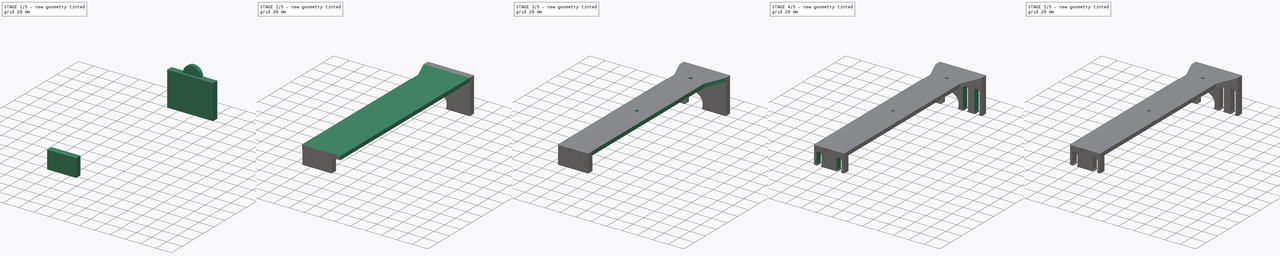
[diagram: build sequence overview — one tinted view per stage of 5, left to right]
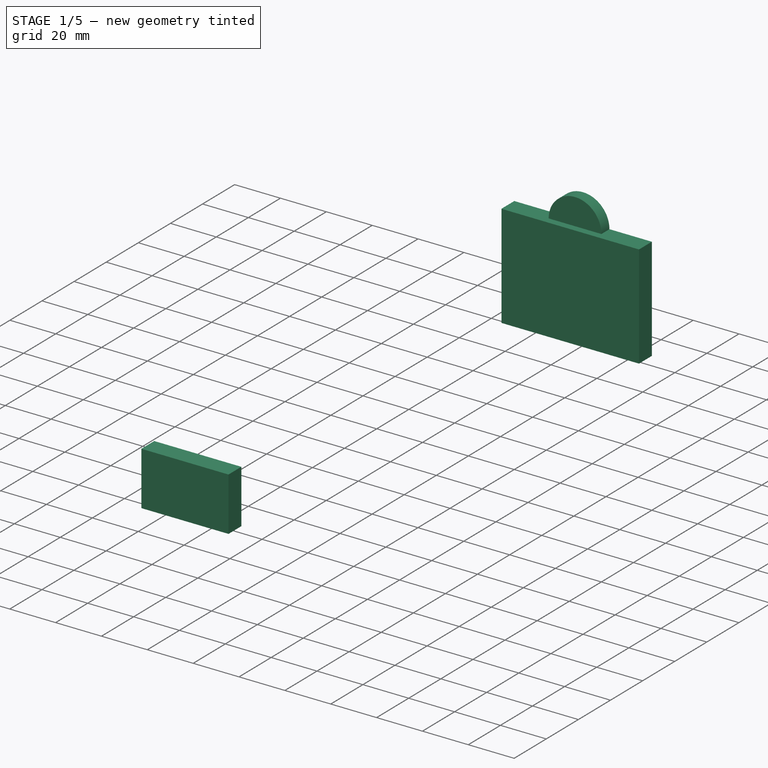
[diagram: stage 1 of 5 — iso view after this stage's code; geometry added in this stage tinted green]
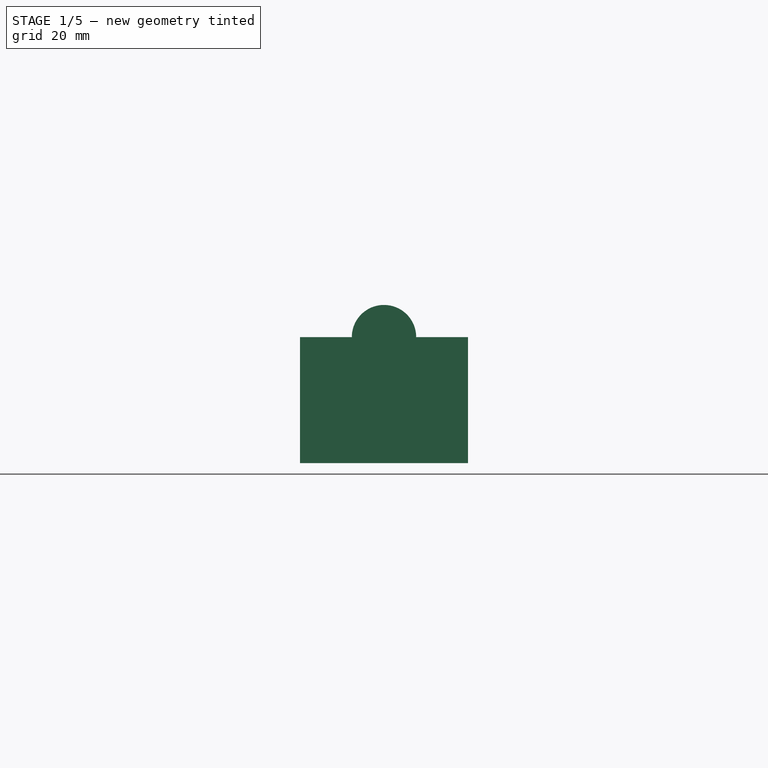
[diagram: stage 1 of 5 — front view after this stage's code; geometry added in this stage tinted green]
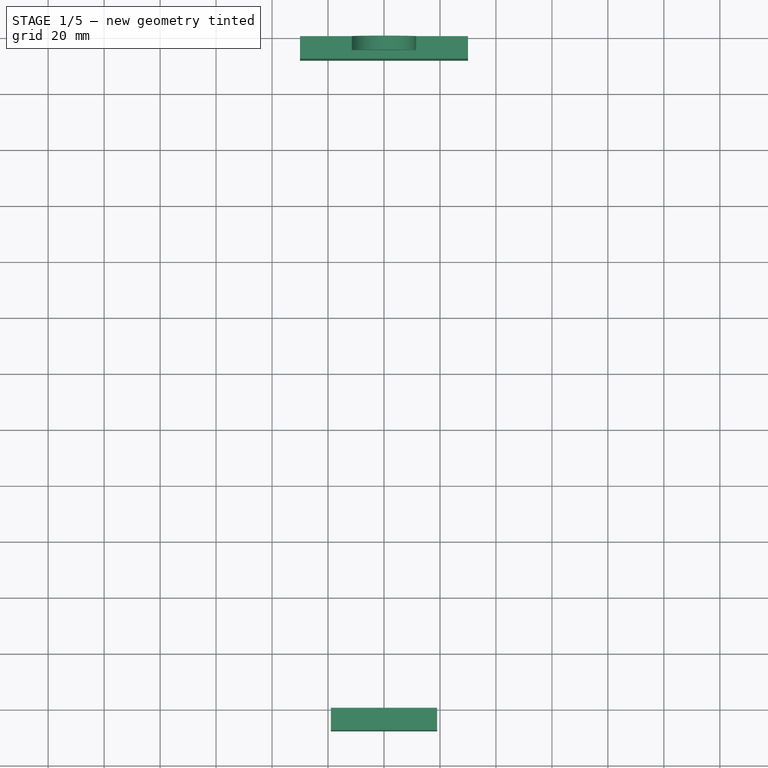
[diagram: stage 1 of 5 — top view after this stage's code; geometry added in this stage tinted green]
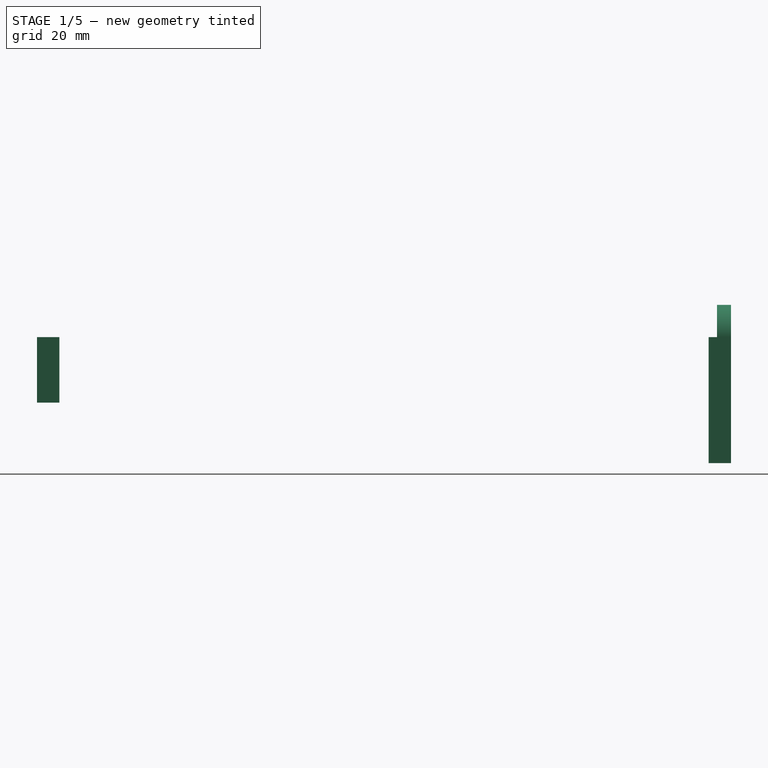
[diagram: stage 1 of 5 — right view after this stage's code; geometry added in this stage tinted green]
FCSTD DOCUMENT  (FreeCAD 0.18R4 (GitTag))
Label: soporte_dremel_principal
License: All rights reserved
LicenseURL: http://en.wikipedia.org/wiki/All_rights_reserved
objects: Sketcher::SketchObject×12, Part::Cut×7, PartDesign::Pad×5, Part::Box×5, Part::MultiFuse×4, Part::Extrusion×4, PartDesign::Body×3, Part::Chamfer×3, PartDesign::Pocket×2, PartDesign::Hole×1, PartDesign::Boolean×1, Part::Feature×1
note: 56 computed .brp shape members not serialized (recipe doc carries the construction recipe); baked Part::Feature solids carry a one-line shape summary decoded from their .brp

FEATURE [Sketcher::SketchObject] Sketch
  MapMode = 5
  Placement = pos=(0,0,0) rot=(1,0,0;1.5708rad)
  Support = -> [XZ_Plane]
  sketch-geometry (15):
    g0: LineSegment StartX=-30 StartY=0 StartZ=0 EndX=30 EndY=0 EndZ=0
    g1: LineSegment StartX=30 StartY=0 StartZ=0 EndX=30 EndY=-23.3842 EndZ=0
    g2: LineSegment StartX=30 StartY=-23.3842 StartZ=0 EndX=20.25 EndY=-23.3842 EndZ=0
    g3: LineSegment StartX=-30 StartY=-23.3842 StartZ=0 EndX=-30 EndY=0 EndZ=0
    g4: LineSegment [constr] StartX=-14 StartY=12 StartZ=0 EndX=-14 EndY=-48 EndZ=0
    g5: LineSegment [constr] StartX=14 StartY=12 StartZ=0 EndX=14 EndY=-48 EndZ=0
    g6: ArcOfCircle CenterX=-14 CenterY=-18 CenterZ=0 NormalX=0 NormalY=0 NormalZ=1 AngleXU=0 Radius=7.5 StartAngle=5.6975 EndAngle=10.0105
    g7: ArcOfCircle CenterX=14 CenterY=-18 CenterZ=0 NormalX=0 NormalY=0 NormalZ=1 AngleXU=0 Radius=7.5 StartAngle=5.6975 EndAngle=10.0105
    g8: Circle [constr] CenterX=-14 CenterY=-18 CenterZ=0 NormalX=0 NormalY=0 NormalZ=1 AngleXU=0 Radius=11
    g9: LineSegment StartX=-20.25 StartY=-22.1458 StartZ=0 EndX=-20.25 EndY=-23.3842 EndZ=0
    g10: LineSegment StartX=-7.75 StartY=-22.1458 StartZ=0 EndX=-7.75 EndY=-23.3842 EndZ=0
    g11: LineSegment StartX=7.75 StartY=-22.1458 StartZ=0 EndX=7.75 EndY=-23.3842 EndZ=0
    g12: LineSegment StartX=20.25 StartY=-22.1458 StartZ=0 EndX=20.25 EndY=-23.3842 EndZ=0
    g13: LineSegment StartX=-20.25 StartY=-23.3842 StartZ=0 EndX=-30 EndY=-23.3842 EndZ=0
    g14: LineSegment StartX=7.75 StartY=-23.3842 StartZ=0 EndX=-7.75 EndY=-23.3842 EndZ=0
  constraints (40):
    c: Coincident(g0,g1)
    c: Coincident(g1,g2)
    c: Coincident(g13,g3)
    c: Coincident(g3,g0)
    c: Horizontal(g0)
    c: Horizontal(g2)
    c: Vertical(g1)
    c: Vertical(g3)
    c: Symmetric(g0,g0,g-1)
    c: DistanceX(g0,g0) = 60
    c: Vertical(g4)
    c: Vertical(g5)
    c: Symmetric(g4,g5,g-2)
    c: DistanceX(g4,g5) = 28
    c: Equal(g4,g5)
    c: DistanceY(g5,g5) = 60
    c: DistanceY(g-1,g5) = 12
    c: Diameter(g6) = 15
    c: Equal(g6,g7)
    c: Coincident(g8,g6)
    c: Diameter(g8) = 22
    c: DistanceY(g7,g6) = 0
    c: Vertical(g9)
    c: Vertical(g10)
    c: Vertical(g11)
    c: Vertical(g12)
    c: Coincident(g9,g6)
    c: Coincident(g10,g6)
    c: Coincident(g13,g9)
    c: Tangent(g2,g13)
    c: Coincident(g10,g14)
    c: Coincident(g14,g11)
    c: Tangent(g2,g14)
    c: Coincident(g11,g7)
    c: Coincident(g7,g12)
    c: Coincident(g12,g2)
    c: Symmetric(g6,g6,g4)
    c: DistanceX(g6,g6) = 12.5
    c: Symmetric(g7,g7,g5)
    c: DistanceX(g7,g7) = 12.5
FEATURE [PartDesign::Pad] Pad
  Length = 8
  Length2 = 100
  Placement = pos=(0,0,0) rot=(1,0,0;1.5708rad)
  Profile = -> Sketch
  Type = 0
FEATURE [PartDesign::Body] Body
  Group = -> [Sketch,Pad,Sketch001,Pad001,Sketch002,Pocket,Sketch003,Pocket001,Sketch004,Pad002,Sketch005,Hole]
  Origin = -> Origin
  Tip = -> Hole
FEATURE [Part::Box] Box  label="Cube"
  AttacherType = Attacher::AttachEngine3D
  Height = 45
  Length = 60
  Placement = pos=(-30,-8,-45) rot=(0,0,1;0rad)
  Width = 8
FEATURE [PartDesign::Body] Body001
  Group = -> [Sketch006,Pad003]
  Origin = -> Origin001
  Placement = pos=(0,3,0) rot=(0,0,1;0rad)
  Tip = -> Pad003
FEATURE [Sketcher::SketchObject] Sketch007
  MapMode = 5
  Placement = pos=(0,0,0) rot=(1,0,0;1.5708rad)
  Support = -> [XZ_Plane002]
  sketch-geometry (4):
    g0: ArcOfCircle CenterX=0 CenterY=0 CenterZ=0 NormalX=0 NormalY=0 NormalZ=1 AngleXU=0 Radius=11.5 StartAngle=5.86307 EndAngle=9.84489
    g1: LineSegment StartX=-10.5 StartY=-4.69042 StartZ=0 EndX=-10.5 EndY=-9.69042 EndZ=0
    g2: LineSegment StartX=-10.5 StartY=-9.69042 StartZ=0 EndX=10.5 EndY=-9.69042 EndZ=0
    g3: LineSegment StartX=10.5 StartY=-9.69042 StartZ=0 EndX=10.5 EndY=-4.69042 EndZ=0
  constraints (12):
    c: Coincident(g0,g-1)
    c: Diameter(g0) = 23
    c: Vertical(g1)
    c: Coincident(g1,g2)
    c: Coincident(g2,g3)
    c: Vertical(g3)
    c: Equal(g1,g3)
    c: DistanceY(g3,g3) = 5
    c: DistanceX(g2,g2) = 21
    c: Symmetric(g1,g2,g-2)
    c: PointOnObject(g0,g3)
    c: Coincident(g0,g1)
FEATURE [PartDesign::Pad] Pad004
  Length = 5
  Length2 = 100
  Placement = pos=(0,0,0) rot=(1,0,0;1.5708rad)
  Profile = -> Sketch007
  Type = 0
FEATURE [PartDesign::Body] Body002
  Group = -> [Sketch007,Pad004,Boolean]
  Origin = -> Origin002
  Placement = pos=(-12,-5,-39) rot=(0,0,1;3.14159rad)
  Tip = -> Boolean
FEATURE [Part::MultiFuse] Fusion
  Shapes = -> [Box,Pad]
FEATURE [Part::Box] Box003  label="Cube003"
  AttacherType = Attacher::AttachEngine3D
  Height = 23
  Length = 38
  Placement = pos=(-19,-248,-23) rot=(0,0,1;0rad)
  Width = 8
FEATURE [Part::Box] Box004  label="Cube004"
  AttacherType = Attacher::AttachEngine3D
  Height = 23
  Length = 38
  Placement = pos=(-19,-248,-23.4) rot=(0,0,1;0rad)
  Width = 8
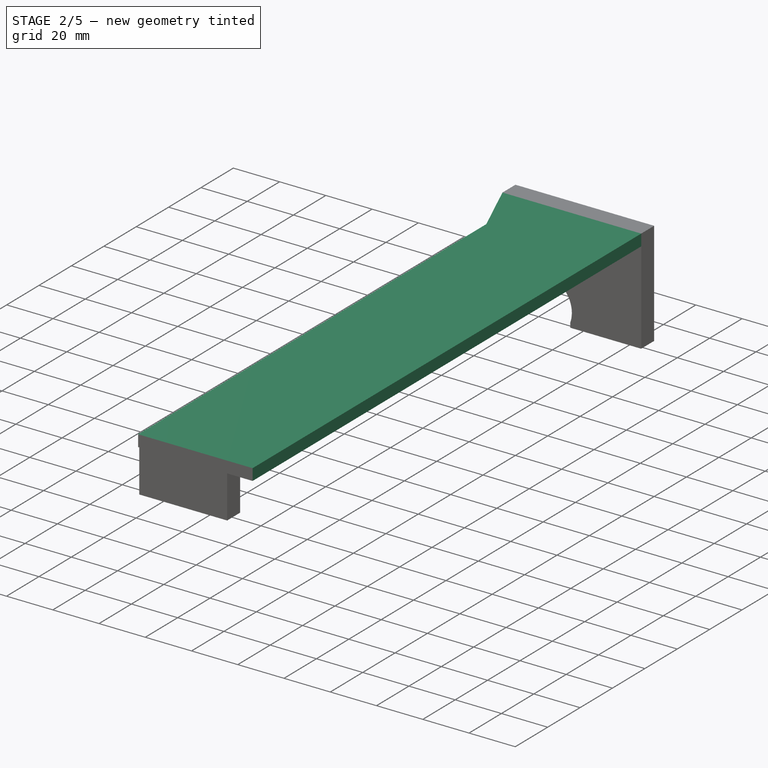
[diagram: stage 2 of 5 — iso view after this stage's code; geometry added in this stage tinted green]
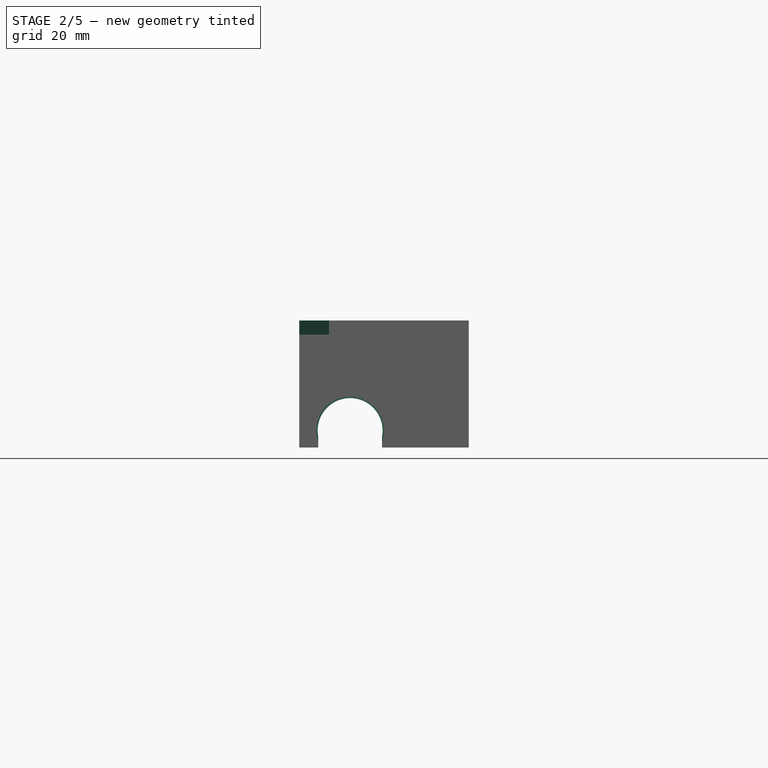
[diagram: stage 2 of 5 — front view after this stage's code; geometry added in this stage tinted green]
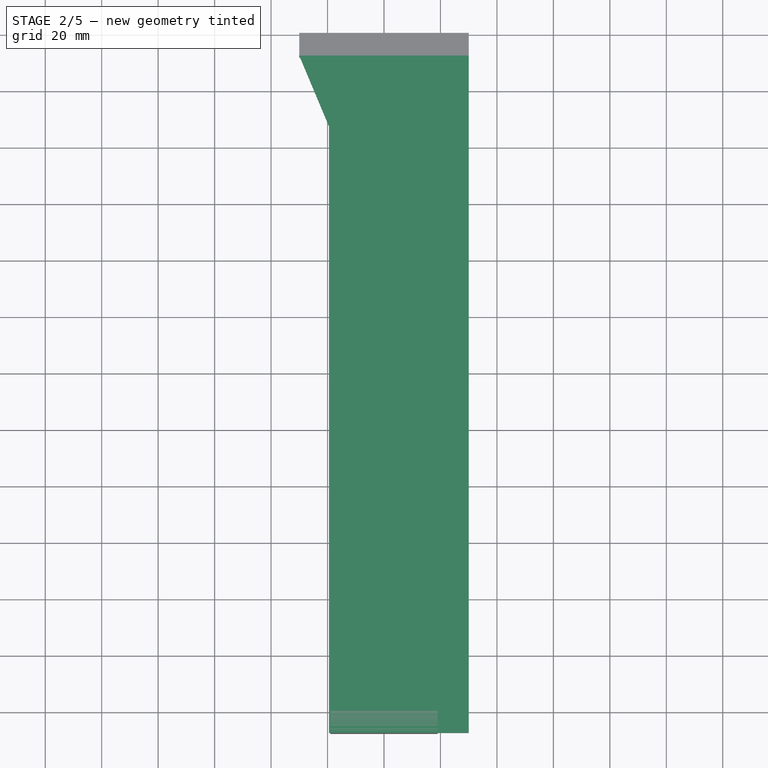
[diagram: stage 2 of 5 — top view after this stage's code; geometry added in this stage tinted green]
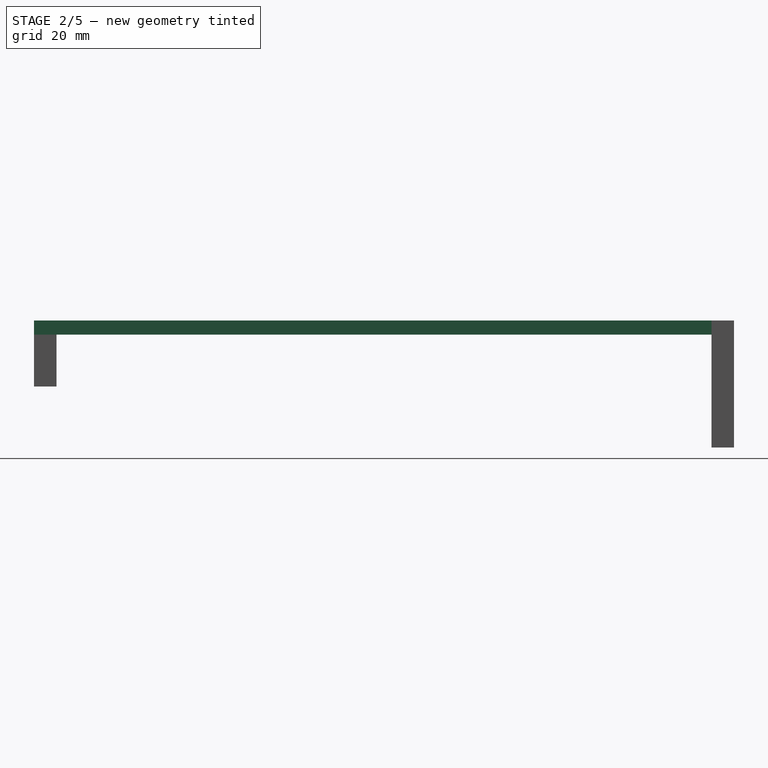
[diagram: stage 2 of 5 — right view after this stage's code; geometry added in this stage tinted green]
FEATURE [Sketcher::SketchObject] Sketch001
  ExternalGeometry = -> [Pad]
  MapMode = 5
  Placement = pos=(0,-8,-1.8e-15) rot=(1,0,0;1.5708rad)
  Support = -> [Pad]
  sketch-geometry (4):
    g0: LineSegment StartX=-30 StartY=0 StartZ=0 EndX=30 EndY=0 EndZ=0
    g1: LineSegment StartX=30 StartY=0 StartZ=0 EndX=30 EndY=-5 EndZ=0
    g2: LineSegment StartX=30 StartY=-5 StartZ=0 EndX=-30 EndY=-5 EndZ=0
    g3: LineSegment StartX=-30 StartY=-5 StartZ=0 EndX=-30 EndY=0 EndZ=0
  constraints (10):
    c: Coincident(g0,g1)
    c: Coincident(g1,g2)
    c: Coincident(g2,g3)
    c: Coincident(g3,g0)
    c: Horizontal(g2)
    c: Vertical(g1)
    c: Vertical(g3)
    c: Coincident(g0,g-5)
    c: Coincident(g0,g-5)
    c: DistanceY(g3,g3) = 5
FEATURE [PartDesign::Pad] Pad001
  BaseFeature = -> Pad
  Length = 240
  Length2 = 100
  Placement = pos=(0,0,0) rot=(1,0,0;1.5708rad)
  Profile = -> Sketch001
  Type = 0
FEATURE [Sketcher::SketchObject] Sketch002
  ExternalGeometry = -> [Pad001]
  MapMode = 5
  Placement = pos=(0,1.1e-15,-5) rot=(1,0,0;3.14159rad)
  Support = -> [Pad001]
  sketch-geometry (4):
    g0: LineSegment StartX=-19.5 StartY=251 StartZ=0 EndX=-33 EndY=251 EndZ=0
    g1: LineSegment StartX=-33 StartY=251 StartZ=0 EndX=-33 EndY=0.857143 EndZ=0
    g2: LineSegment StartX=-33 StartY=0.857143 StartZ=0 EndX=-19.5 EndY=33 EndZ=0
    g3: LineSegment StartX=-19.5 StartY=33 StartZ=0 EndX=-19.5 EndY=251 EndZ=0
  constraints (12):
    c: Horizontal(g0)
    c: Coincident(g0,g1)
    c: Vertical(g1)
    c: Coincident(g1,g2)
    c: Coincident(g2,g3)
    c: Vertical(g3)
    c: Coincident(g0,g3)
    c: DistanceX(g0,g-1) = 19.5
    c: PointOnObject(g-3,g2)
    c: DistanceY(g-3,g2) = 25
    c: DistanceY(g-4,g0) = 3
    c: DistanceX(g0,g-4) = 3
FEATURE [PartDesign::Pocket] Pocket
  BaseFeature = -> Pad001
  Length = 5
  Length2 = 100
  Placement = pos=(0,0,0) rot=(1,0,0;1.5708rad)
  Profile = -> Sketch002
  Type = 1
FEATURE [Sketcher::SketchObject] Sketch006
  MapMode = 5
  Placement = pos=(0,0,0) rot=(1,0,0;1.5708rad)
  Support = -> [XZ_Plane001]
  sketch-geometry (4):
    g0: ArcOfCircle CenterX=0 CenterY=0 CenterZ=0 NormalX=0 NormalY=0 NormalZ=1 AngleXU=0 Radius=12 StartAngle=5.77782 EndAngle=9.93014
    g1: LineSegment StartX=-10.5 StartY=-5.80948 StartZ=0 EndX=-10.5 EndY=-10.8095 EndZ=0
    g2: LineSegment StartX=-10.5 StartY=-10.8095 StartZ=0 EndX=10.5 EndY=-10.8095 EndZ=0
    g3: LineSegment StartX=10.5 StartY=-10.8095 StartZ=0 EndX=10.5 EndY=-5.80948 EndZ=0
  constraints (12):
    c: Coincident(g0,g-1)
    c: Diameter(g0) = 24
    c: Vertical(g1)
    c: Coincident(g1,g2)
    c: Coincident(g2,g3)
    c: Vertical(g3)
    c: Equal(g1,g3)
    c: DistanceX(g2,g2) = 21
    c: Symmetric(g1,g2,g-2)
    c: PointOnObject(g0,g3)
    c: DistanceY(g1,g1) = 5
    c: Coincident(g1,g0)
FEATURE [PartDesign::Pad] Pad003
  Length = 3
  Length2 = 100
  Placement = pos=(0,0,0) rot=(1,0,0;1.5708rad)
  Profile = -> Sketch006
  Type = 0
FEATURE [PartDesign::Boolean] Boolean
  BaseFeature = -> Pad004
  Group = -> [Body001]
  Type = 0
FEATURE [Part::Cut] Cut  label="parte_superior"
  Base = -> Fusion
  Tool = -> Body002
FEATURE [Sketcher::SketchObject] Sketch009
  ExternalGeometry = -> [Cut]
  MapMode = 5
  Placement = pos=(0,0,0) rot=(0,0.707107,0.707107;3.14159rad)
  Support = -> [Cut]
  sketch-geometry (4):
    g0: LineSegment StartX=0.7 StartY=-39 StartZ=0 EndX=23.3 EndY=-39 EndZ=0
    g1: LineSegment StartX=23.3 StartY=-39 StartZ=0 EndX=23.3 EndY=-53 EndZ=0
    g2: LineSegment StartX=23.3 StartY=-53 StartZ=0 EndX=0.7 EndY=-53 EndZ=0
    g3: LineSegment StartX=0.7 StartY=-53 StartZ=0 EndX=0.7 EndY=-39 EndZ=0
  constraints (11):
    c: Coincident(g0,g1)
    c: Coincident(g1,g2)
    c: Coincident(g2,g3)
    c: Coincident(g3,g0)
    c: Horizontal(g0)
    c: Horizontal(g2)
    c: Vertical(g1)
    c: Vertical(g3)
    c: Symmetric(g0,g0,g-3)
    c: DistanceX(g2,g2) = 22.6
    c: DistanceY(g1,g1) = 14
FEATURE [Part::Extrusion] Extrude002
  Base = -> Sketch009
  Dir = (0,1,-2e-16)
  DirMode = 2
  FaceMakerClass = Part::FaceMakerBullseye
  LengthFwd = -30
  LengthRev = 0
  Solid = true
  Symmetric = false
FEATURE [Part::Cut] Cut006  label="techo_superior"
  Base = -> Cut
  Tool = -> Extrude002
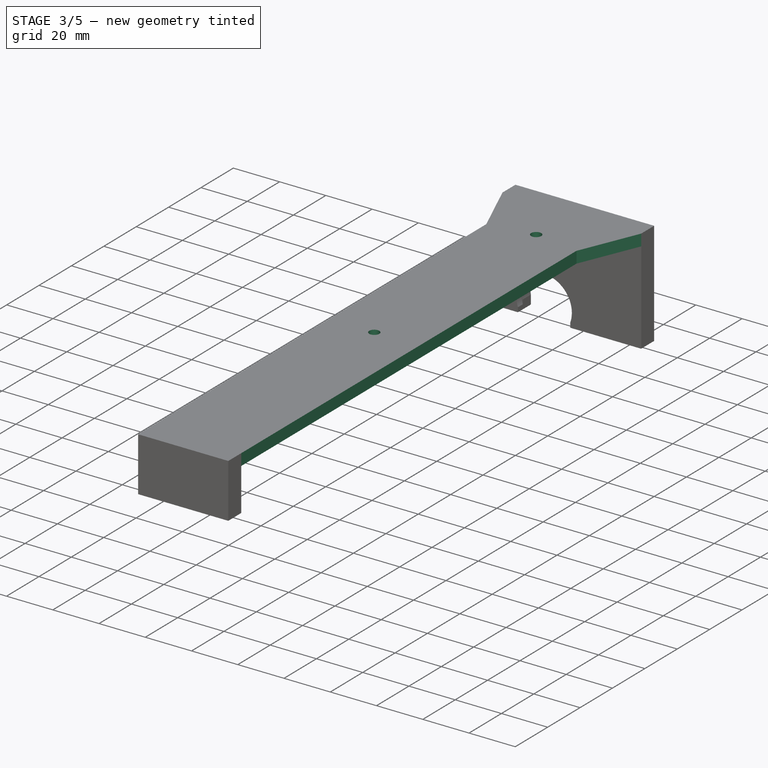
[diagram: stage 3 of 5 — iso view after this stage's code; geometry added in this stage tinted green]
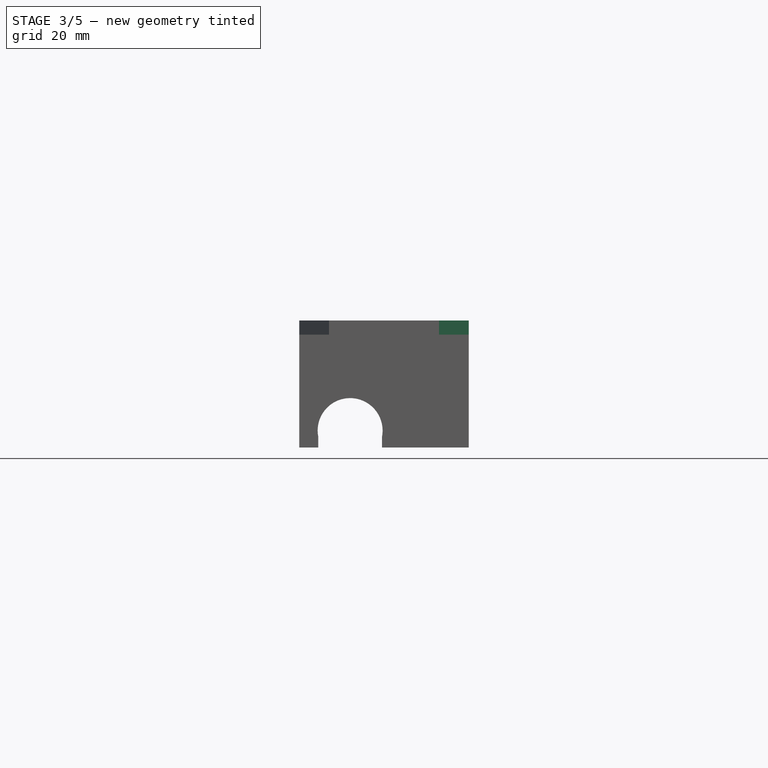
[diagram: stage 3 of 5 — front view after this stage's code; geometry added in this stage tinted green]
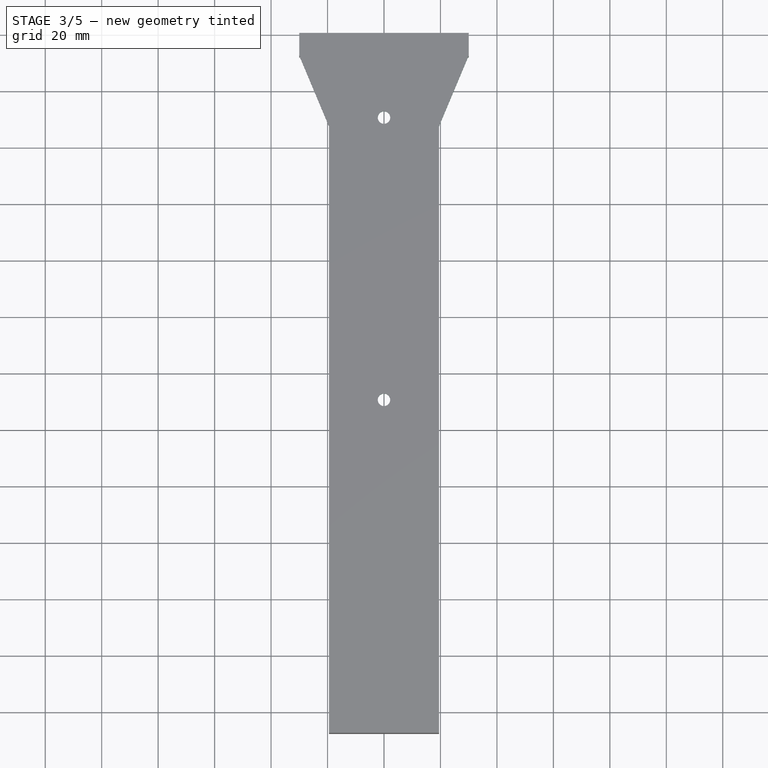
[diagram: stage 3 of 5 — top view after this stage's code; geometry added in this stage tinted green]
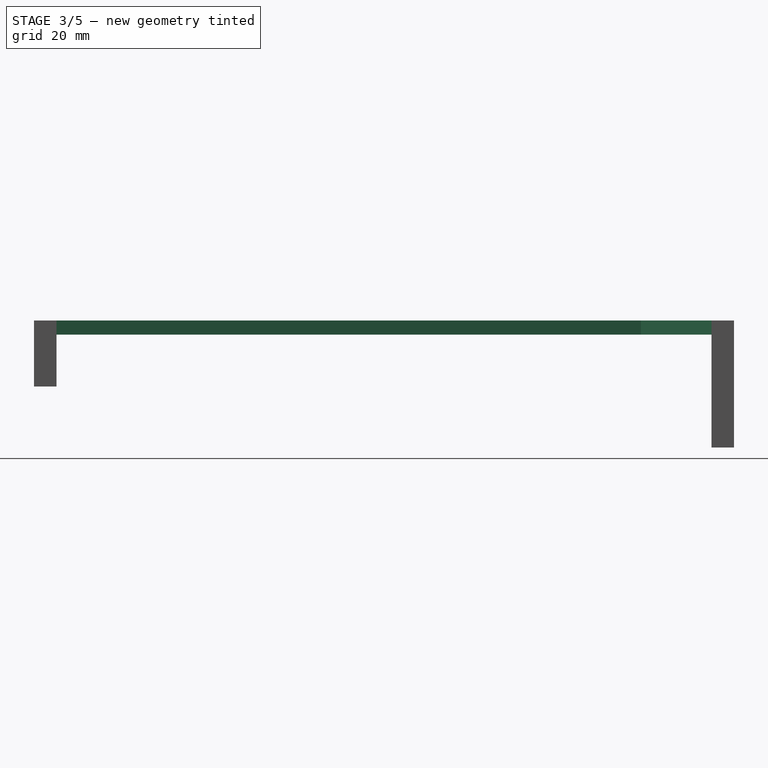
[diagram: stage 3 of 5 — right view after this stage's code; geometry added in this stage tinted green]
FEATURE [Sketcher::SketchObject] Sketch003
  ExternalGeometry = -> [Pocket]
  MapMode = 5
  Placement = pos=(0,1.1e-15,-5) rot=(1,0,0;3.14159rad)
  Support = -> [Pocket]
  sketch-geometry (4):
    g0: LineSegment StartX=19.5 StartY=251 StartZ=0 EndX=33 EndY=251 EndZ=0
    g1: LineSegment StartX=33 StartY=251 StartZ=0 EndX=33 EndY=0.857143 EndZ=0
    g2: LineSegment StartX=33 StartY=0.857143 StartZ=0 EndX=19.5 EndY=33 EndZ=0
    g3: LineSegment StartX=19.5 StartY=33 StartZ=0 EndX=19.5 EndY=251 EndZ=0
  constraints (12):
    c: Horizontal(g0)
    c: Coincident(g0,g1)
    c: Vertical(g1)
    c: Coincident(g1,g2)
    c: Coincident(g2,g3)
    c: Coincident(g3,g0)
    c: Vertical(g3)
    c: DistanceY(g-3,g0) = 3
    c: DistanceX(g-3,g0) = 3
    c: DistanceX(g-1,g0) = 19.5
    c: DistanceY(g-4,g2) = 25
    c: PointOnObject(g-4,g2)
FEATURE [PartDesign::Pocket] Pocket001
  BaseFeature = -> Pocket
  Length = 5
  Length2 = 100
  Placement = pos=(0,0,0) rot=(1,0,0;1.5708rad)
  Profile = -> Sketch003
  Type = 1
FEATURE [Sketcher::SketchObject] Sketch004
  ExternalGeometry = -> [Pocket001]
  MapMode = 5
  Placement = pos=(0,-248,-4.41e-14) rot=(1,0,0;1.5708rad)
  Support = -> [Pocket001]
  sketch-geometry (14):
    g0: LineSegment StartX=-19.5 StartY=-1.1e-14 StartZ=0 EndX=19.5 EndY=-1.1e-14 EndZ=0
    g1: LineSegment StartX=19.5 StartY=-1.1e-14 StartZ=0 EndX=19.5 EndY=-23.3842 EndZ=0
    g2: LineSegment StartX=19.5 StartY=-23.3842 StartZ=0 EndX=18 EndY=-23.3842 EndZ=0
    g3: LineSegment StartX=-19.5 StartY=-23.3842 StartZ=0 EndX=-19.5 EndY=-1.07e-14 EndZ=0
    g4: LineSegment [constr] StartX=-14 StartY=-1.1e-14 StartZ=0 EndX=-14 EndY=-23.3842 EndZ=0
    g5: LineSegment [constr] StartX=14 StartY=-1.1e-14 StartZ=0 EndX=14 EndY=-23.3842 EndZ=0
    g6: ArcOfCircle CenterX=-14 CenterY=-18.3227 CenterZ=0 NormalX=0 NormalY=0 NormalZ=1 AngleXU=0 Radius=4.5 StartAngle=5.8073 EndAngle=9.90066
    g7: ArcOfCircle CenterX=14 CenterY=-18.3227 CenterZ=0 NormalX=0 NormalY=0 NormalZ=1 AngleXU=0 Radius=4.5 StartAngle=5.8073 EndAngle=9.90066
    g8: LineSegment StartX=-18 StartY=-20.3842 StartZ=0 EndX=-18 EndY=-23.3842 EndZ=0
    g9: LineSegment StartX=-10 StartY=-20.3842 StartZ=0 EndX=-10 EndY=-23.3842 EndZ=0
    g10: LineSegment StartX=10 StartY=-20.3842 StartZ=0 EndX=10 EndY=-23.3842 EndZ=0
    g11: LineSegment StartX=18 StartY=-20.3842 StartZ=0 EndX=18 EndY=-23.3842 EndZ=0
    g12: LineSegment StartX=-18 StartY=-23.3842 StartZ=0 EndX=-19.5 EndY=-23.3842 EndZ=0
    g13: LineSegment StartX=10 StartY=-23.3842 StartZ=0 EndX=-10 EndY=-23.3842 EndZ=0
  constraints (39):
    c: Coincident(g0,g1)
    c: Coincident(g1,g2)
    c: Coincident(g12,g3)
    c: Coincident(g3,g0)
    c: Horizontal(g2)
    c: Vertical(g1)
    c: Vertical(g3)
    c: Symmetric(g0,g0,g-2)
    c: Coincident(g0,g-3)
    c: DistanceY(g12,g-4) = 0
    c: PointOnObject(g4,g0)
    c: Vertical(g4)
    c: Vertical(g5)
    c: Equal(g4,g5)
    c: Symmetric(g4,g5,g-2)
    c: DistanceX(g4,g5) = 28
    c: Diameter(g6) = 9
    c: Equal(g6,g7)
    c: DistanceY(g7,g6) = 0
    c: Vertical(g8)
    c: Vertical(g9)
    c: Vertical(g10)
    c: Vertical(g11)
    c: Coincident(g12,g8)
    c: Tangent(g2,g12)
    c: Coincident(g9,g13)
    c: Coincident(g6,g9)
    c: Symmetric(g6,g6,g4)
    c: DistanceX(g6,g6) = 8
    c: Tangent(g2,g13)
    c: Coincident(g10,g13)
    c: Coincident(g11,g2)
    c: Coincident(g7,g11)
    c: Symmetric(g7,g7,g5)
    c: DistanceX(g10,g7) = 8
    c: Coincident(g6,g8)
    c: Coincident(g7,g10)
    c: DistanceY(g10,g10) = 3
    c: DistanceY(g4,g8) = 0
FEATURE [PartDesign::Pad] Pad002
  BaseFeature = -> Pocket001
  Length = 8
  Length2 = 100
  Placement = pos=(0,0,0) rot=(1,0,0;1.5708rad)
  Profile = -> Sketch004
  Reversed = true
  Type = 0
FEATURE [Sketcher::SketchObject] Sketch005
  MapMode = 5
  Placement = pos=(0,1.1e-15,-5) rot=(1,0,0;3.14159rad)
  Support = -> [Pad002]
  sketch-geometry (2):
    g0: Circle CenterX=0 CenterY=30 CenterZ=0 NormalX=0 NormalY=0 NormalZ=1 AngleXU=0 Radius=2
    g1: Circle CenterX=0 CenterY=130 CenterZ=0 NormalX=0 NormalY=0 NormalZ=1 AngleXU=0 Radius=2
  constraints (6):
    c: PointOnObject(g0,g-2)
    c: PointOnObject(g1,g-2)
    c: Equal(g0,g1)
    c: DistanceY(g0,g1) = 100
    c: DistanceY(g-1,g0) = 30
    c: Diameter(g1) = 4
FEATURE [PartDesign::Hole] Hole
  BaseFeature = -> Pad002
  Depth = 25
  DepthType = 1
  Diameter = 4.4
  DrillPoint = 0
  DrillPointAngle = 118
  HoleCutCountersinkAngle = 90
  HoleCutDepth = 0
  HoleCutDiameter = 8
  HoleCutType = 2
  ModelActualThread = false
  Placement = pos=(0,0,0) rot=(1,0,0;1.5708rad)
  Profile = -> Sketch005
  Tapered = false
  TaperedAngle = 90
  ThreadAngle = 0
  ThreadClass = 0
  ThreadCutOffInner = 0
  ThreadCutOffOuter = 0
  ThreadDirection = 0
  ThreadFit = 0
  ThreadPitch = 0
  ThreadSize = 5
  ThreadType = 1
  Threaded = false
FEATURE [Part::MultiFuse] Fusion001
  Shapes = -> [Hole,Cut006]
FEATURE [Part::MultiFuse] Fusion002
  Shapes = -> [Box003,Fusion001]
FEATURE [Part::MultiFuse] Fusion003
  Shapes = -> [Box004,Fusion002]
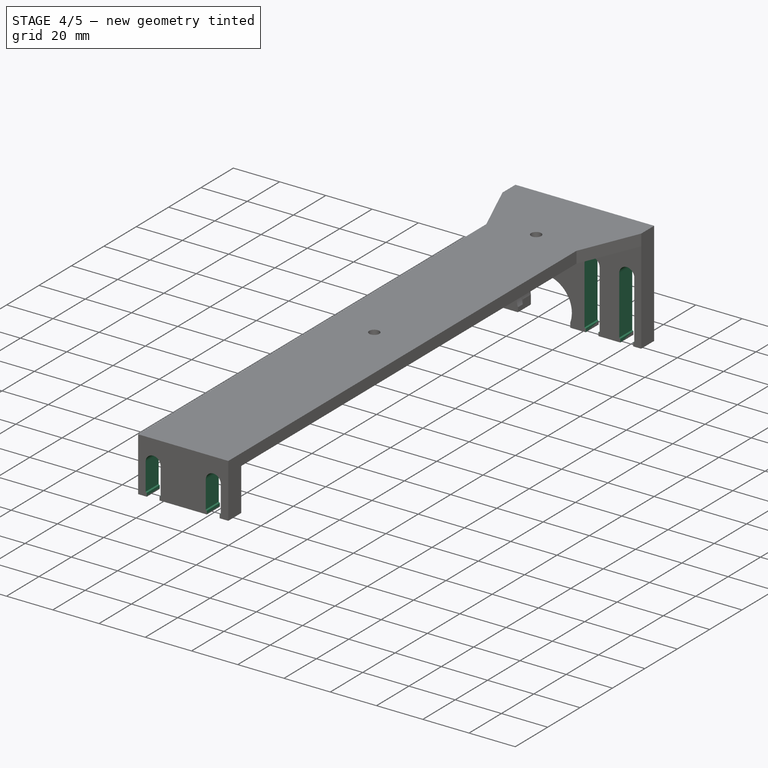
[diagram: stage 4 of 5 — iso view after this stage's code; geometry added in this stage tinted green]
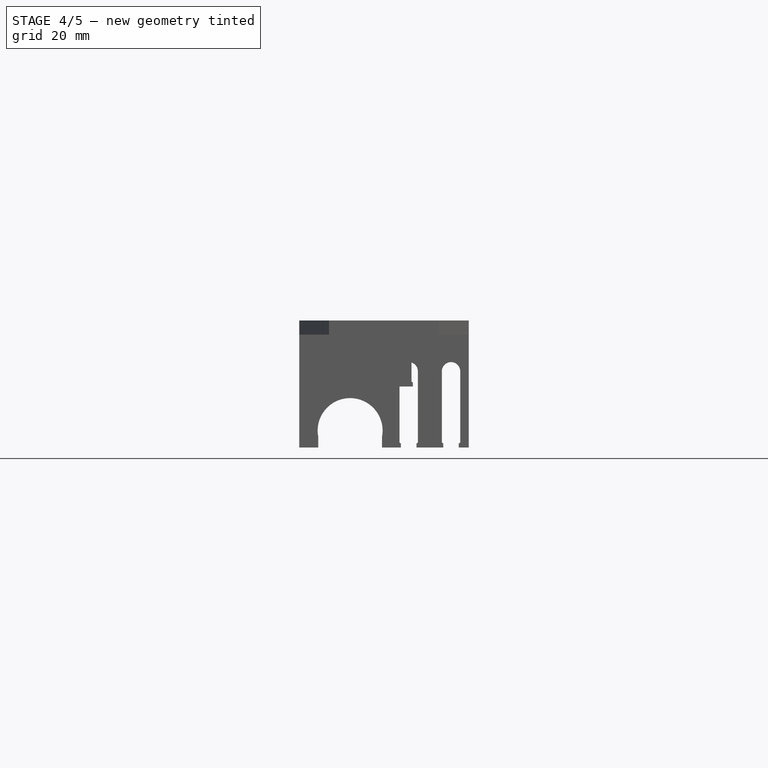
[diagram: stage 4 of 5 — front view after this stage's code; geometry added in this stage tinted green]
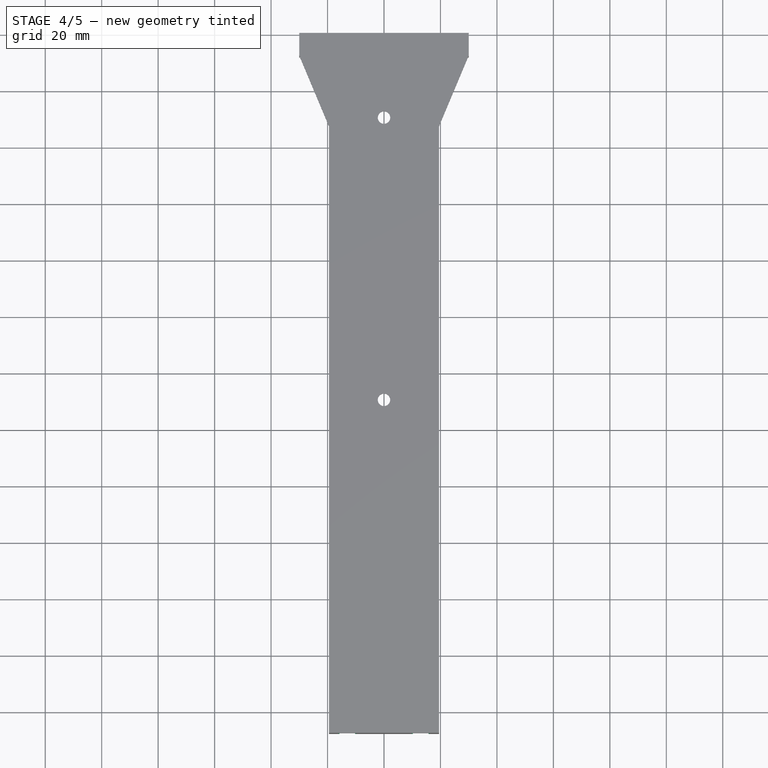
[diagram: stage 4 of 5 — top view after this stage's code; geometry added in this stage tinted green]
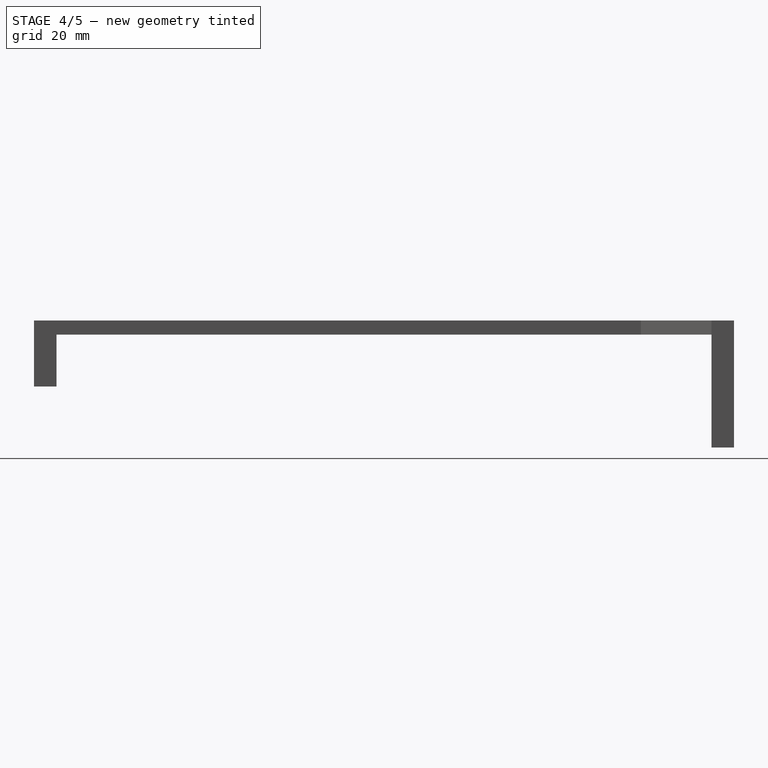
[diagram: stage 4 of 5 — right view after this stage's code; geometry added in this stage tinted green]
FEATURE [Sketcher::SketchObject] Sketch010
  ExternalGeometry = -> [Fusion002]
  MapMode = 5
  Placement = pos=(0,-248,0) rot=(1,0,0;1.5708rad)
  Support = -> [Fusion002]
  sketch-geometry (18):
    g0: ArcOfCircle CenterX=-13 CenterY=-9.88422 CenterZ=0 NormalX=0 NormalY=0 NormalZ=1 AngleXU=0 Radius=3.25 StartAngle=1.79e-14 EndAngle=3.14159
    g1: LineSegment StartX=-16.25 StartY=-9.88422 StartZ=0 EndX=-16.25 EndY=-21.8842 EndZ=0
    g2: LineSegment StartX=-16.25 StartY=-21.8842 StartZ=0 EndX=-15.75 EndY=-21.8842 EndZ=0
    g3: LineSegment StartX=-15.75 StartY=-21.8842 StartZ=0 EndX=-15.75 EndY=-23.8842 EndZ=0
    g4: LineSegment StartX=-15.75 StartY=-23.8842 StartZ=0 EndX=-10.25 EndY=-23.8842 EndZ=0
    g5: LineSegment StartX=-10.25 StartY=-23.8842 StartZ=0 EndX=-10.25 EndY=-21.8842 EndZ=0
    g6: LineSegment StartX=-10.25 StartY=-21.8842 StartZ=0 EndX=-9.75 EndY=-21.8842 EndZ=0
    g7: LineSegment StartX=-9.75 StartY=-21.8842 StartZ=0 EndX=-9.75 EndY=-9.88422 EndZ=0
    g8: LineSegment StartX=9.75 StartY=-9.88422 StartZ=0 EndX=9.75 EndY=-21.8842 EndZ=0
    g9: LineSegment StartX=9.75 StartY=-21.8842 StartZ=0 EndX=10.25 EndY=-21.8842 EndZ=0
    g10: LineSegment StartX=10.25 StartY=-21.8842 StartZ=0 EndX=10.25 EndY=-23.8842 EndZ=0
    g11: LineSegment StartX=10.25 StartY=-23.8842 StartZ=0 EndX=15.75 EndY=-23.8842 EndZ=0
    g12: LineSegment StartX=15.75 StartY=-23.8842 StartZ=0 EndX=15.75 EndY=-21.8842 EndZ=0
    g13: LineSegment StartX=15.75 StartY=-21.8842 StartZ=0 EndX=16.25 EndY=-21.8842 EndZ=0
    g14: LineSegment StartX=16.25 StartY=-21.8842 StartZ=0 EndX=16.25 EndY=-9.88422 EndZ=0
    g15: LineSegment [constr] StartX=-13 StartY=-9.88422 StartZ=0 EndX=-13 EndY=-32.8842 EndZ=0
    g16: LineSegment [constr] StartX=13 StartY=-9.88422 StartZ=0 EndX=13 EndY=-32.8842 EndZ=0
    g17: ArcOfCircle CenterX=13 CenterY=-9.88422 CenterZ=0 NormalX=0 NormalY=0 NormalZ=1 AngleXU=0 Radius=3.25 StartAngle=0 EndAngle=3.14159
  constraints (51):
    c: Vertical(g1)
    c: Coincident(g1,g2)
    c: Coincident(g2,g3)
    c: Vertical(g3)
    c: Coincident(g3,g4)
    c: Horizontal(g4)
    c: Vertical(g5)
    c: Horizontal(g2)
    c: Vertical(g8)
    c: Coincident(g8,g9)
    c: Coincident(g9,g10)
    c: Coincident(g10,g11)
    c: Horizontal(g11)
    c: Coincident(g11,g12)
    c: Vertical(g12)
    c: Coincident(g12,g13)
    c: Coincident(g13,g14)
    c: Vertical(g14)
    c: Horizontal(g9)
    c: Equal(g2,g6)
    c: Equal(g6,g9)
    c: Equal(g9,g13)
    c: Vertical(g10)
    c: Equal(g3,g5)
    c: Equal(g5,g10)
    c: Equal(g10,g12)
    c: Equal(g1,g7)
    c: Equal(g7,g8)
    c: Equal(g8,g14)
    c: Equal(g4,g11)
    c: DistanceX(g2,g2) = 0.5
    c: Vertical(g15)
    c: Vertical(g16)
    c: Coincident(g0,g15)
    c: DistanceX(g8,g14) = 6.5
    c: Equal(g15,g16)
    c: DistanceY(g16,g16) = 23
    c: Coincident(g17,g16)
    c: Tangent(g8,g17) = -1.5708
    c: Tangent(g14,g17) = -1.5708
    c: Tangent(g0,g1) = -1.5708
    c: Tangent(g0,g7) = -1.5708
    c: Symmetric(g0,g17,g-2)
    c: Coincident(g5,g6)
    c: Coincident(g6,g7)
    c: Coincident(g4,g5)
    c: DistanceX(g0,g17) = 26
    c: DistanceY(g12,g12) = 2
    c: Vertical(g7)
    c: DistanceY(g7,g7) = 12
    c: DistanceY(g4,g-3) = 0.5
FEATURE [Part::Extrusion] Extrude003
  Base = -> Sketch010
  Dir = (0,-1,2e-16)
  DirMode = 2
  FaceMakerClass = Part::FaceMakerBullseye
  LengthFwd = -10
  LengthRev = 0
  Solid = true
  Symmetric = false
FEATURE [Part::Cut] Cut007
  Base = -> Fusion003
  Tool = -> Extrude003
FEATURE [Sketcher::SketchObject] Sketch011
  ExternalGeometry = -> [Fusion002]
  MapMode = 5
  Placement = pos=(0,0,0) rot=(0,0.707107,0.707107;3.14159rad)
  Support = -> [Cut007]
  sketch-geometry (18):
    g0: ArcOfCircle CenterX=-23.75 CenterY=-18 CenterZ=0 NormalX=0 NormalY=0 NormalZ=1 AngleXU=0 Radius=3.25 StartAngle=0 EndAngle=3.14159
    g1: LineSegment StartX=-27 StartY=-18 StartZ=0 EndX=-27 EndY=-43.5 EndZ=0
    g2: LineSegment StartX=-27 StartY=-43.5 StartZ=0 EndX=-26.5 EndY=-43.5 EndZ=0
    g3: LineSegment StartX=-26.5 StartY=-43.5 StartZ=0 EndX=-26.5 EndY=-45.5 EndZ=0
    g4: LineSegment StartX=-21 StartY=-45.5 StartZ=0 EndX=-21 EndY=-43.5 EndZ=0
    g5: LineSegment StartX=-21 StartY=-43.5 StartZ=0 EndX=-20.5 EndY=-43.5 EndZ=0
    g6: LineSegment StartX=-20.5 StartY=-43.5 StartZ=0 EndX=-20.5 EndY=-18 EndZ=0
    g7: LineSegment StartX=-12 StartY=-18 StartZ=0 EndX=-12 EndY=-43.5 EndZ=0
    g8: LineSegment StartX=-12 StartY=-43.5 StartZ=0 EndX=-11.5 EndY=-43.5 EndZ=0
    g9: LineSegment StartX=-11.5 StartY=-43.5 StartZ=0 EndX=-11.5 EndY=-45.5 EndZ=0
    g10: LineSegment StartX=-6 StartY=-45.5 StartZ=0 EndX=-6 EndY=-43.5 EndZ=0
    g11: LineSegment StartX=-5.5 StartY=-43.5 StartZ=0 EndX=-5.5 EndY=-18 EndZ=0
    g12: LineSegment [constr] StartX=-23.75 StartY=-18 StartZ=0 EndX=-23.75 EndY=-38 EndZ=0
    g13: LineSegment [constr] StartX=-8.75 StartY=-18 StartZ=0 EndX=-8.75 EndY=-38 EndZ=0
    g14: ArcOfCircle CenterX=-8.75 CenterY=-18 CenterZ=0 NormalX=0 NormalY=0 NormalZ=1 AngleXU=0 Radius=3.25 StartAngle=-1.2434e-12 EndAngle=3.14159
    g15: LineSegment StartX=-6 StartY=-43.5 StartZ=0 EndX=-5.5 EndY=-43.5 EndZ=0
    g16: LineSegment StartX=-26.5 StartY=-45.5 StartZ=0 EndX=-21 EndY=-45.5 EndZ=0
    g17: LineSegment StartX=-11.5 StartY=-45.5 StartZ=0 EndX=-6 EndY=-45.5 EndZ=0
  constraints (53):
    c: Vertical(g1)
    c: Coincident(g1,g2)
    c: Coincident(g2,g3)
    c: Vertical(g3)
    c: Vertical(g4)
    c: Horizontal(g2)
    c: Vertical(g7)
    c: Coincident(g7,g8)
    c: Coincident(g8,g9)
    c: Vertical(g10)
    c: Vertical(g11)
    c: Horizontal(g8)
    c: Equal(g2,g5)
    c: Equal(g5,g8)
    c: Vertical(g9)
    c: Equal(g3,g4)
    c: Equal(g4,g9)
    c: Equal(g9,g10)
    c: Equal(g1,g6)
    c: Equal(g6,g7)
    c: Equal(g7,g11)
    c: DistanceX(g2,g2) = 0.5
    c: Vertical(g12)
    c: Vertical(g13)
    c: Coincident(g0,g12)
    c: DistanceX(g7,g11) = 6.5
    c: Equal(g12,g13)
    c: Coincident(g14,g13)
    c: Tangent(g7,g14) = -1.5708
    c: Tangent(g11,g14) = -1.5708
    c: Tangent(g0,g1) = -1.5708
    c: Tangent(g0,g6) = -1.5708
    c: Coincident(g4,g5)
    c: Coincident(g5,g6)
    c: DistanceX(g0,g14) = 15
    c: DistanceY(g10,g10) = 2
    c: Vertical(g6)
    c: DistanceY(g14,g0) = 0
    c: DistanceY(g3,g-4) = 0.5
    c: DistanceX(g-4,g-4) = 30.7
    c: DistanceX(g-4,g3) = 3.5
    c: Equal(g0,g14)
    c: Horizontal(g15)
    c: Coincident(g10,g15)
    c: Coincident(g11,g15)
    c: Equal(g15,g8)
    c: Horizontal(g16)
    c: Coincident(g3,g16)
    c: Coincident(g4,g16)
    c: Coincident(g9,g17)
    c: Coincident(g10,g17)
    c: DistanceY(g6,g6) = 25.5
    c: DistanceY(g13,g13) = 20
FEATURE [Part::Extrusion] Extrude004
  Base = -> Sketch011
  Dir = (0,1,-2e-16)
  DirMode = 2
  FaceMakerClass = Part::FaceMakerBullseye
  LengthFwd = -10
  LengthRev = 0
  Solid = true
  Symmetric = false
FEATURE [Part::Cut] Cut008
  Base = -> Cut007
  Tool = -> Extrude004
FEATURE [Part::Chamfer] Chamfer
  Base = -> Cut008
  Edges = 1 edges r=0.3: [Edge69]
FEATURE [Part::Chamfer] Chamfer001
  Base = -> Chamfer
  Edges = 3 edges r=0.3: [Edge78,Edge84,Edge98]
FEATURE [Part::Chamfer] Chamfer002  label="soporte_principal"
  Base = -> Chamfer001
  Edges = 4 edges r=0.3: [Edge231,Edge254,Edge307,Edge310]
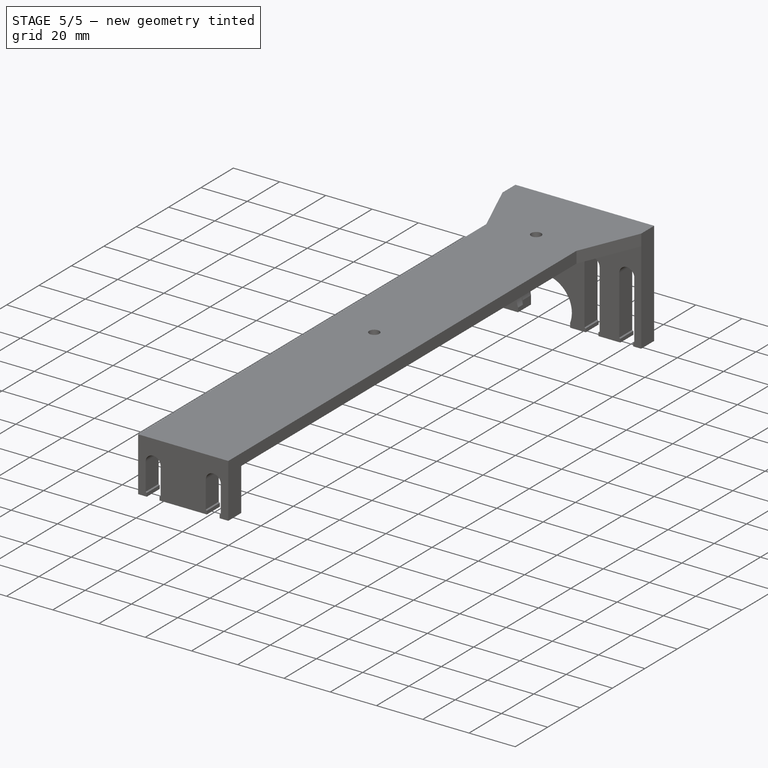
[diagram: stage 5 of 5 — iso view after this stage's code; geometry added in this stage tinted green]
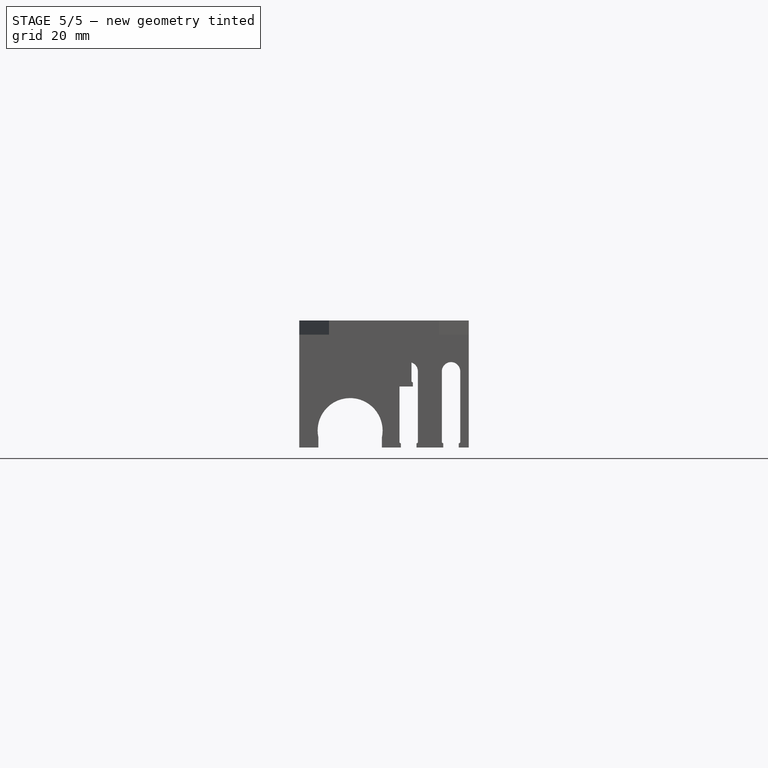
[diagram: stage 5 of 5 — front view after this stage's code; geometry added in this stage tinted green]
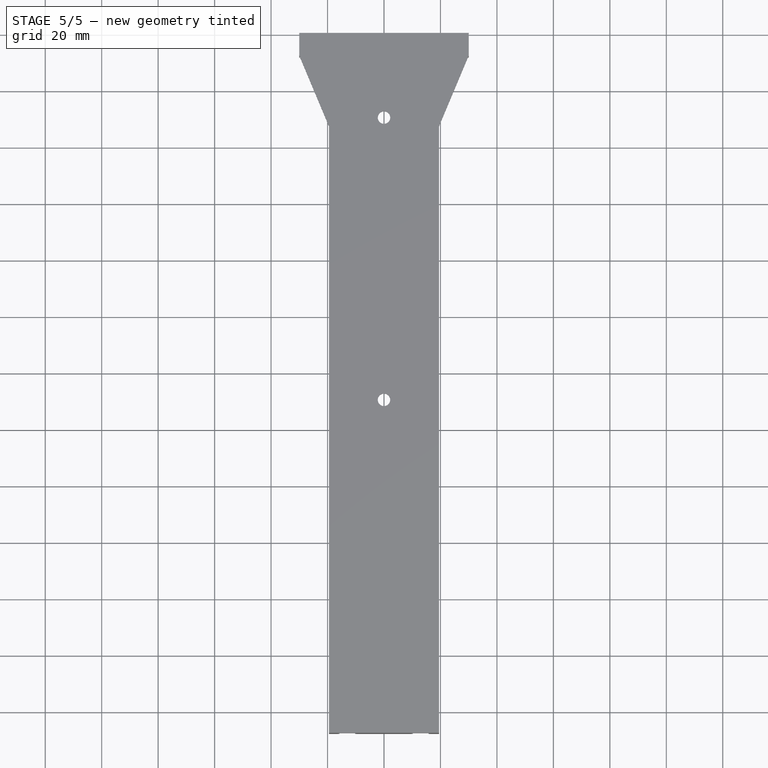
[diagram: stage 5 of 5 — top view after this stage's code; geometry added in this stage tinted green]
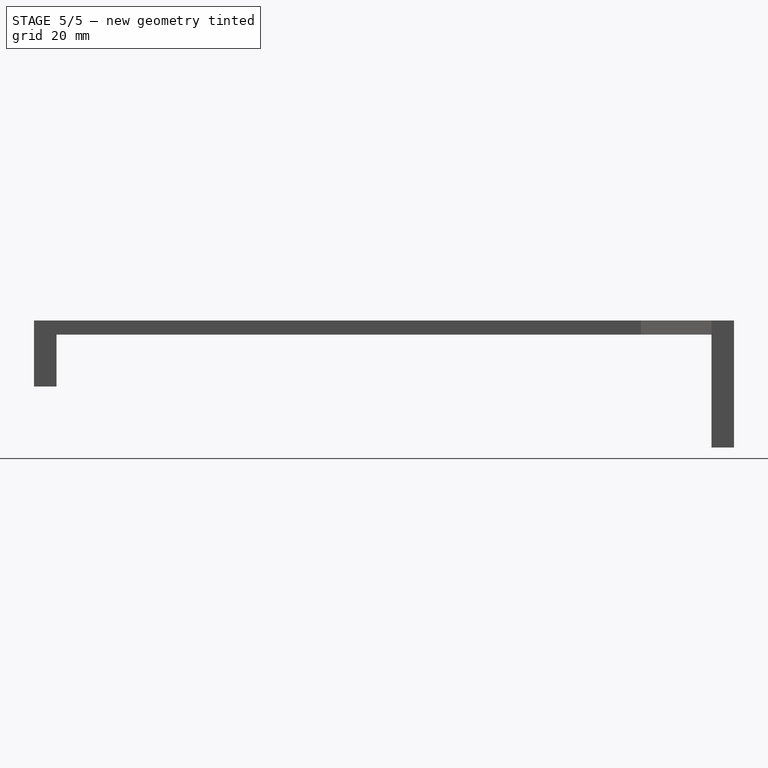
[diagram: stage 5 of 5 — right view after this stage's code; geometry added in this stage tinted green]
FEATURE [Part::Feature] Cut002  label="parte_superior_test"
  shape: bbox 60 x 8 x 45 mm, 20 faces (baked)
FEATURE [Part::Box] Box001  label="Cube001"
  AttacherType = Attacher::AttachEngine3D
  Height = 50
  Length = 40
  Placement = pos=(4,-11,-46) rot=(0,0,1;0rad)
  Width = 15
FEATURE [Part::Box] Box002  label="Cube002"
  AttacherType = Attacher::AttachEngine3D
  Height = 50
  Length = 40
  Placement = pos=(-34,-11,-21) rot=(0,0,1;0rad)
  Width = 15
FEATURE [Part::Cut] Cut003
  Base = -> Cut002
  Tool = -> Box001
FEATURE [Part::Cut] Cut004  label="parte_superior_test001"
  Base = -> Cut003
  Tool = -> Box002
FEATURE [Sketcher::SketchObject] Sketch008
  ExternalGeometry = -> [Cut004]
  MapMode = 5
  Placement = pos=(0,0,0) rot=(0,0.707107,0.707107;3.14159rad)
  Support = -> [Cut004]
  sketch-geometry (4):
    g0: LineSegment StartX=0.75 StartY=-39 StartZ=0 EndX=23.25 EndY=-39 EndZ=0
    g1: LineSegment StartX=23.25 StartY=-39 StartZ=0 EndX=23.25 EndY=-50.0541 EndZ=0
    g2: LineSegment StartX=23.25 StartY=-50.0541 StartZ=0 EndX=0.75 EndY=-50.0541 EndZ=0
    g3: LineSegment StartX=0.75 StartY=-50.0541 StartZ=0 EndX=0.75 EndY=-39 EndZ=0
  constraints (10):
    c: Coincident(g0,g1)
    c: Coincident(g1,g2)
    c: Coincident(g2,g3)
    c: Coincident(g3,g0)
    c: Horizontal(g0)
    c: Horizontal(g2)
    c: Vertical(g1)
    c: Vertical(g3)
    c: Symmetric(g0,g0,g-3)
    c: DistanceX(g2,g2) = 22.5
FEATURE [Part::Extrusion] Extrude
  Base = -> Sketch008
  Dir = (0,1,-2e-16)
  DirMode = 2
  FaceMakerClass = Part::FaceMakerBullseye
  LengthFwd = 20
  LengthRev = 0
  Solid = true
  Symmetric = true
FEATURE [Part::Cut] Cut005
  Base = -> Cut004
  Tool = -> Extrude
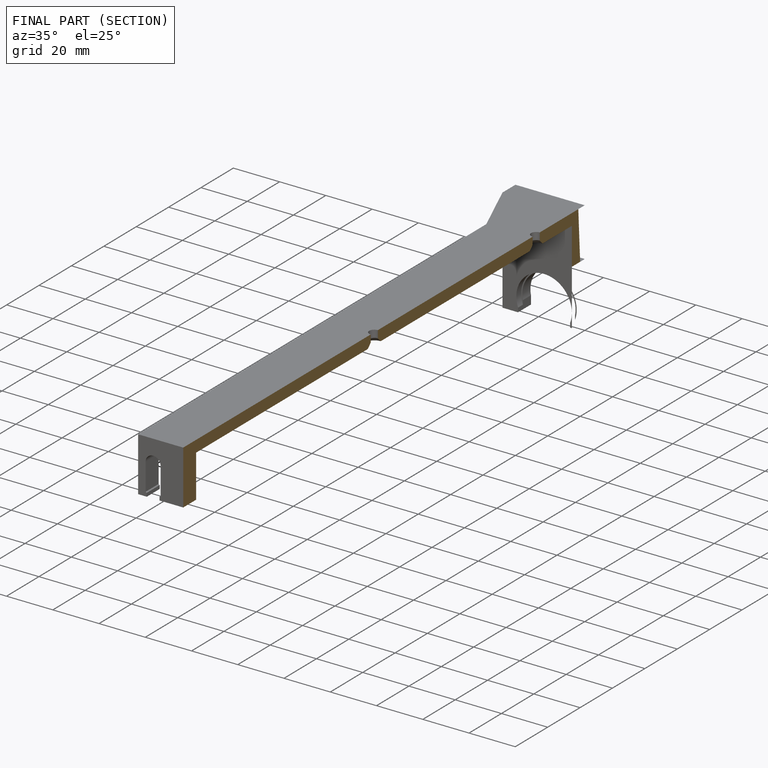
[diagram: finished part — half-section view (interior)]
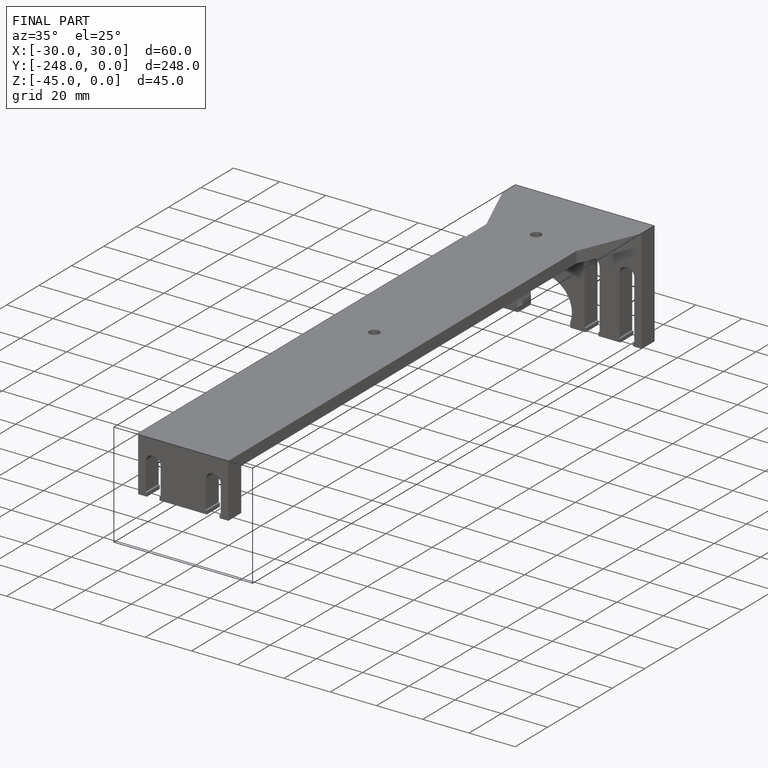
[diagram: finished part — iso view with bounding-box wireframe]
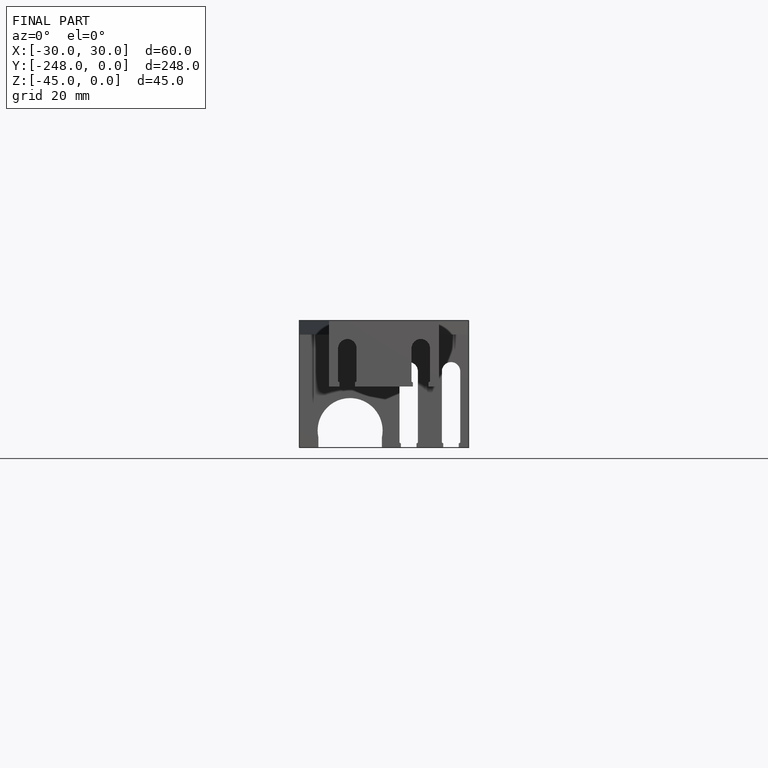
[diagram: finished part — front view with bounding-box wireframe]
